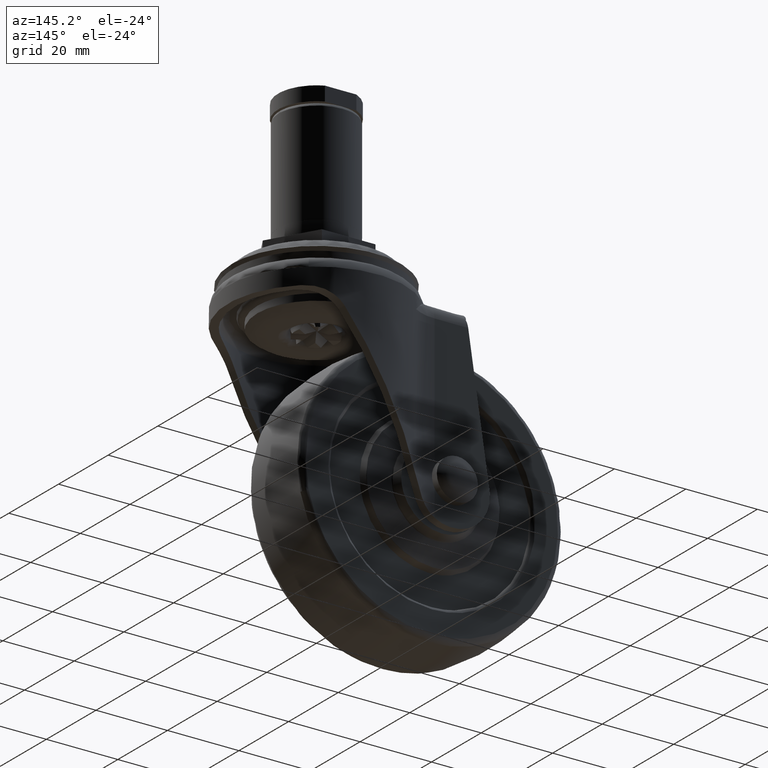
[diagram: clean part render]
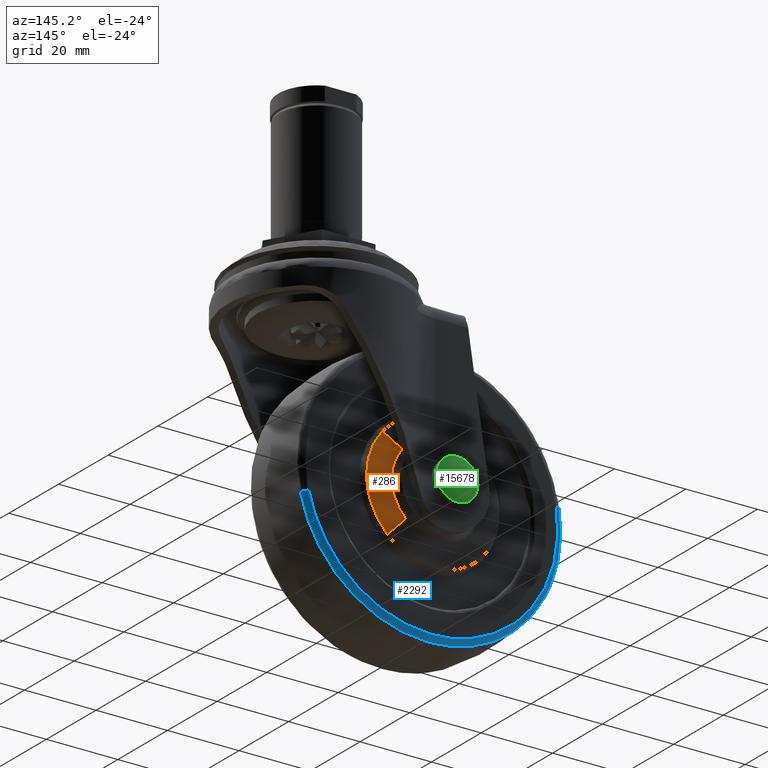
[diagram: same view with three faces highlighted in distinct colors, each labeled with its STEP entity id]
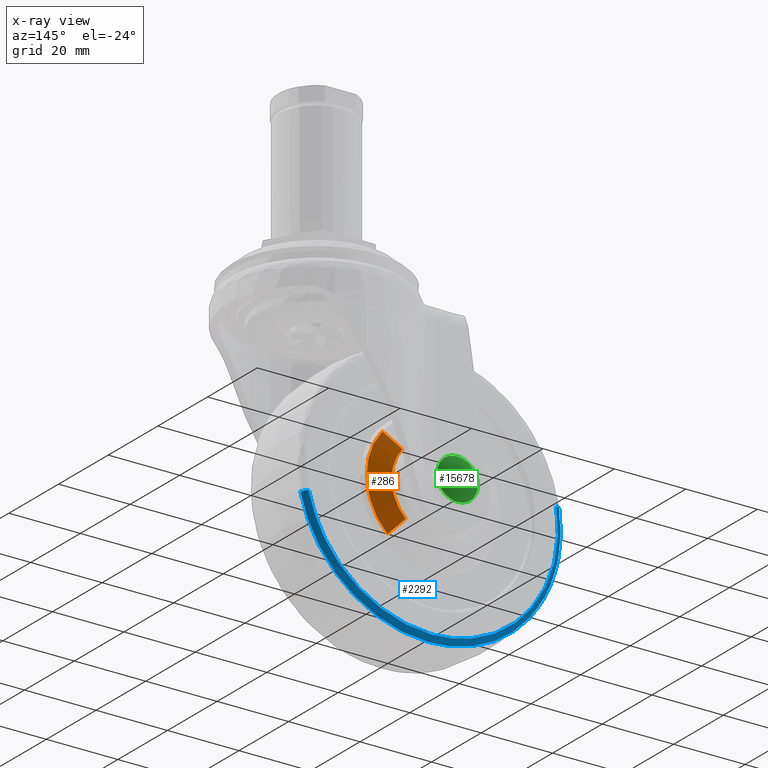
[diagram: x-ray of the same camera — body ghosted, the three highlighted faces saturated]
A machine part, auxiliary view with three faces highlighted in distinct colors.
The next image is the same camera in x-ray (body ghosted, the three faces saturated) — at least one of them is partly hidden behind the body in this view.
Their STEP definitions:

[orange] entity #286 — the highlighted face is a freeform B-spline surface patch.
#70=CARTESIAN_POINT('',(-15.360513245780989,12.469561828281330,-49.348173803471440));
#71=VERTEX_POINT('',#70);
#126=CARTESIAN_POINT('',(-16.309885233722969,12.469561063073030,-66.657796227111035));
#127=VERTEX_POINT('',#126);
#139=CARTESIAN_POINT('',(-12.201779515133881,11.010146419921080,-70.986836385914472));
#140=VERTEX_POINT('',#139);
#141=CARTESIAN_POINT('',(-16.309885233722969,12.469561063073030,-66.657796227111035));
#142=CARTESIAN_POINT('',(-12.201779515133881,11.010146419921080,-70.986836385914472));
#143=QUASI_UNIFORM_CURVE('',1,(#141,#142),.UNSPECIFIED.,.F.,.U.);
#144=EDGE_CURVE('',#127,#140,#143,.T.);
#203=CARTESIAN_POINT('',(-10.803603628256790,11.010146209847541,-45.494377231858323));
#204=VERTEX_POINT('',#203);
#216=CARTESIAN_POINT('',(-15.360513245780989,12.469561828281330,-49.348173803471440));
#217=CARTESIAN_POINT('',(-10.803603628256790,11.010146209847541,-45.494377231858323));
#218=QUASI_UNIFORM_CURVE('',1,(#216,#217),.UNSPECIFIED.,.F.,.U.);
#219=EDGE_CURVE('',#71,#204,#218,.T.);
#224=CARTESIAN_POINT('',(-16.412587517168230,12.506046367146620,-66.549570601997857));
#225=CARTESIAN_POINT('',(-7.866902248768105,12.506046367146622,-58.440018083988804));
#226=CARTESIAN_POINT('',(-15.474433538971999,12.506046367146617,-49.444516629513544));
#227=CARTESIAN_POINT('',(-12.096508686655810,10.972748812809961,-71.097768692737745));
#228=CARTESIAN_POINT('',(0.744283094084672,10.972748812809956,-58.912312284251371));
#229=CARTESIAN_POINT('',(-10.686833568285049,10.972748812809954,-45.395624328589037));
#237=(BOUNDED_SURFACE()B_SPLINE_SURFACE(2,1,((#224,#227),(#225,#228),(#226,#229)),.UNSPECIFIED.,.F.,.F.,.U.)B_SPLINE_SURFACE_WITH_KNOTS((3,3),(2,2),(0.0,29.807898895841220),(0.0,6.454893007164583),.UNSPECIFIED.)GEOMETRIC_REPRESENTATION_ITEM()RATIONAL_B_SPLINE_SURFACE(((1.0,1.0),(0.718822509939086,0.718822509939086),(0.977505800795127,0.977505800795127)))REPRESENTATION_ITEM('')SURFACE());
#238=CARTESIAN_POINT('',(-12.375525000000071,12.469561000000001,-57.500324905101913));
#239=VERTEX_POINT('',#238);
#240=CARTESIAN_POINT('',(-12.375525000000071,12.469561000000001,-57.500324905101913));
#241=CARTESIAN_POINT('',(-12.375333794860049,12.469561098486270,-56.530998280799182));
#242=CARTESIAN_POINT('',(-12.573194188350399,12.469561272000471,-54.823229175540277));
#243=CARTESIAN_POINT('',(-13.254387304722121,12.469561482165460,-52.754731765500694));
#244=CARTESIAN_POINT('',(-14.138083279805320,12.469561663074980,-50.974176499056931));
#245=CARTESIAN_POINT('',(-14.853741755116131,12.469561767410800,-49.947276247969029));
#246=CARTESIAN_POINT('',(-15.360513245780989,12.469561828281330,-49.348173803471440));
#247=B_SPLINE_CURVE_WITH_KNOTS('',3,(#240,#241,#242,#243,#244,#245,#246),.UNSPECIFIED.,.F.,.U.,(4,1,1,1,4),(0.000000020981012,2.907962576312837,5.123545373844451,6.508292559035523,8.862356812620623),.UNSPECIFIED.);
#248=EDGE_CURVE('',#239,#71,#247,.T.);
#249=ORIENTED_EDGE('',*,*,#248,.T.);
#250=ORIENTED_EDGE('',*,*,#219,.T.);
#251=CARTESIAN_POINT('',(-6.407516489852390,11.010146314222281,-57.500324165151923));
#252=VERTEX_POINT('',#251);
#253=CARTESIAN_POINT('',(-6.407516489852390,11.010146314222281,-57.500324165151923));
#254=CARTESIAN_POINT('',(-6.407361795500528,11.010146303584630,-56.276705718305053));
#255=CARTESIAN_POINT('',(-6.643239615464803,11.010146282901010,-53.897520348325003));
#256=CARTESIAN_POINT('',(-7.543278342137390,11.010146256743150,-50.888654899785941));
#257=CARTESIAN_POINT('',(-8.889686924182533,11.010146232152289,-48.060030081569337));
#258=CARTESIAN_POINT('',(-10.013331130330419,11.010146217969030,-46.428573671421603));
#259=CARTESIAN_POINT('',(-10.803603628256790,11.010146209847541,-45.494377231858323));
#260=B_SPLINE_CURVE_WITH_KNOTS('',3,(#253,#254,#255,#256,#257,#258,#259),.UNSPECIFIED.,.F.,.U.,(4,1,1,1,4),(4.363807E-009,3.670843806502665,7.137750827014534,9.381045055685899,13.051888857829040),.UNSPECIFIED.);
#261=EDGE_CURVE('',#252,#204,#260,.T.);
#262=ORIENTED_EDGE('',*,*,#261,.F.);
#263=CARTESIAN_POINT('',(-12.201779515133881,11.010146419921080,-70.986836385914472));
#264=CARTESIAN_POINT('',(-11.232480927642950,11.010146412714610,-70.067333827382740));
#265=CARTESIAN_POINT('',(-9.570329737330123,11.010146397362361,-68.108485038943670));
#266=CARTESIAN_POINT('',(-7.892524143442133,11.010146373162430,-65.020723342128051));
#267=CARTESIAN_POINT('',(-6.715488912686851,11.010146345633650,-61.508219173009223));
#268=CARTESIAN_POINT('',(-6.407078858631341,11.010146326233510,-59.032881893401679));
#269=CARTESIAN_POINT('',(-6.407516489852390,11.010146314222281,-57.500324165151923));
#270=B_SPLINE_CURVE_WITH_KNOTS('',3,(#263,#264,#265,#266,#267,#268,#269),.UNSPECIFIED.,.F.,.U.,(4,1,1,1,4),(0.000000023289124,4.008091632298649,7.662498049215182,10.491758269599019,15.089279230478370),.UNSPECIFIED.);
#271=EDGE_CURVE('',#140,#252,#270,.T.);
#272=ORIENTED_EDGE('',*,*,#271,.F.);
#273=ORIENTED_EDGE('',*,*,#144,.F.);
#274=CARTESIAN_POINT('',(-16.309885233722969,12.469561063073030,-66.657796227111035));
#275=CARTESIAN_POINT('',(-15.651729596427030,12.469561058772751,-66.033442322389078));
#276=CARTESIAN_POINT('',(-14.575208037096891,12.469561050034400,-64.764737911121699));
#277=CARTESIAN_POINT('',(-13.352004416262810,12.469561034875420,-62.563830046982041));
#278=CARTESIAN_POINT('',(-12.566135406950931,12.469561018376931,-60.168439572395542));
#279=CARTESIAN_POINT('',(-12.375377246665950,12.469561006248290,-58.407513244962367));
#280=CARTESIAN_POINT('',(-12.375525000000071,12.469561000000001,-57.500324905101913));
#281=B_SPLINE_CURVE_WITH_KNOTS('',3,(#274,#275,#276,#277,#278,#279,#280),.UNSPECIFIED.,.F.,.U.,(4,1,1,1,4),(0.000000015564956,2.721545468878960,4.962823566775104,7.524271532146420,10.245816985466501),.UNSPECIFIED.);
#282=EDGE_CURVE('',#127,#239,#281,.T.);
#283=ORIENTED_EDGE('',*,*,#282,.T.);
#284=EDGE_LOOP('',(#249,#250,#262,#272,#273,#283));
#285=FACE_OUTER_BOUND('',#284,.T.);
#286=ADVANCED_FACE('',(#285),#237,.T.);

[blue] entity #2292 — the highlighted face is a freeform B-spline surface patch.
#2076=CARTESIAN_POINT('',(9.448117864550852,10.500000000000000,-65.224805261356721));
#2077=VERTEX_POINT('',#2076);
#2099=CARTESIAN_POINT('',(-59.833513229339282,10.500000000000000,-51.758657256339752));
#2100=VERTEX_POINT('',#2099);
#2118=CARTESIAN_POINT('',(-61.295925853298350,9.230744510506929,-51.517605232987627));
#2119=VERTEX_POINT('',#2118);
#2120=CARTESIAN_POINT('',(-59.833513229339282,10.500000000000000,-51.758657256339752));
#2121=CARTESIAN_POINT('',(-60.008217688595209,10.500135909219120,-51.729860415632807));
#2122=CARTESIAN_POINT('',(-60.346607461263332,10.438566332578571,-51.674083039242277));
#2123=CARTESIAN_POINT('',(-60.740421790180847,10.210016756111530,-51.609169936574737));
#2124=CARTESIAN_POINT('',(-61.016840969730033,9.923355690446682,-51.563607281113832));
#2125=CARTESIAN_POINT('',(-61.203978617540017,9.608171972169075,-51.532761056235557));
#2126=CARTESIAN_POINT('',(-61.275814923186587,9.361957360957392,-51.520920152679409));
#2127=CARTESIAN_POINT('',(-61.295925853298350,9.230744510506929,-51.517605232987627));
#2128=B_SPLINE_CURVE_WITH_KNOTS('',3,(#2120,#2121,#2122,#2123,#2124,#2125,#2126,#2127),.UNSPECIFIED.,.F.,.U.,(4,1,1,1,1,4),(0.000000222650492,0.531145818152272,1.029128636263193,1.361035940651829,1.726221465757068,2.124573406588514),.UNSPECIFIED.);
#2129=EDGE_CURVE('',#2100,#2119,#2128,.T.);
#2148=CARTESIAN_POINT('',(10.894347438131330,9.230757517157327,-65.549100782697806));
#2149=VERTEX_POINT('',#2148);
#2169=CARTESIAN_POINT('',(9.448117864550852,10.500000000000000,-65.224805261356721));
#2170=CARTESIAN_POINT('',(9.631681647318178,10.500149542390760,-65.265966715756704));
#2171=CARTESIAN_POINT('',(9.998704315481739,10.428361956632830,-65.348266102873154));
#2172=CARTESIAN_POINT('',(10.435092005774839,10.145269977581110,-65.446119566890388));
#2173=CARTESIAN_POINT('',(10.755280700316010,9.734800987311674,-65.517917130368218));
#2174=CARTESIAN_POINT('',(10.866259525119570,9.416668345833861,-65.542802485009233));
#2175=CARTESIAN_POINT('',(10.894347438131330,9.230757517157327,-65.549100782697806));
#2176=B_SPLINE_CURVE_WITH_KNOTS('',3,(#2169,#2170,#2171,#2172,#2173,#2174,#2175),.UNSPECIFIED.,.F.,.U.,(4,1,1,1,4),(0.000000222641479,0.564338774076705,1.128646781123056,1.560222028548235,2.124559430739951),.UNSPECIFIED.);
#2177=EDGE_CURVE('',#2077,#2149,#2176,.T.);
#2182=CARTESIAN_POINT('',(-59.738642996828958,10.496915196817787,-51.774294882513047));
#2183=CARTESIAN_POINT('',(-65.464674114315997,10.496915196817788,-86.512937879341990));
#2184=CARTESIAN_POINT('',(-30.726031117487057,10.496915196817787,-92.238968996829044));
#2185=CARTESIAN_POINT('',(2.079525894053373,10.496915196817788,-97.646366179606829));
#2186=CARTESIAN_POINT('',(9.354297263545059,10.496915196817787,-65.203767383404212));
#2187=CARTESIAN_POINT('',(-61.177621264303497,10.590591351082471,-51.537105584770494));
#2188=CARTESIAN_POINT('',(-67.140841679533111,10.590591351082473,-87.714726849073998));
#2189=CARTESIAN_POINT('',(-30.963220415229607,10.590591351082471,-93.677947264303583));
#2190=CARTESIAN_POINT('',(3.201240673142885,10.590591351082473,-99.309334976312215));
#2191=CARTESIAN_POINT('',(10.777354783699616,10.590591351082471,-65.522866915774955));
#2192=CARTESIAN_POINT('',(-61.307523969174440,9.135132918560542,-51.515693495345921));
#2193=CARTESIAN_POINT('',(-67.292156473828626,9.135132918560542,-87.823217464520340));
#2194=CARTESIAN_POINT('',(-30.984632504654179,9.135132918560542,-93.807849969174526));
#2195=CARTESIAN_POINT('',(3.302502649915583,9.135132918560542,-99.459458261486688));
#2196=CARTESIAN_POINT('',(10.905820254814362,9.135132918560544,-65.551673391393805));
#2204=(BOUNDED_SURFACE()B_SPLINE_SURFACE(2,2,((#2182,#2187,#2192),(#2183,#2188,#2193),(#2184,#2189,#2194),(#2185,#2190,#2195),(#2186,#2191,#2196)),.UNSPECIFIED.,.F.,.F.,.U.)B_SPLINE_SURFACE_WITH_KNOTS((3,2,3),(3,3),(0.0,60.968006821225977,119.497293369602900),(0.0,2.439595126112496),.UNSPECIFIED.)GEOMETRIC_REPRESENTATION_ITEM()RATIONAL_B_SPLINE_SURFACE(((0.918060100511515,0.657096391141304,0.916732661836285),(0.649166522608496,0.464637314069224,0.648227881719631),(0.918060100511515,0.657096391141304,0.916732661836285),(0.659922265724616,0.472335677152107,0.658968072924297),(0.897409073728563,0.642315534022168,0.896111494723326)))REPRESENTATION_ITEM('')SURFACE());
#2205=CARTESIAN_POINT('',(-25.0,10.500000000000000,-92.803872603993199));
#2206=VERTEX_POINT('',#2205);
#2207=CARTESIAN_POINT('',(-25.0,10.500000000000000,-92.803872603993199));
#2208=CARTESIAN_POINT('',(-23.634542600588080,10.500000000000050,-92.803902566799621));
#2209=CARTESIAN_POINT('',(-20.841551979889768,10.499999999999940,-92.641643244077059));
#2210=CARTESIAN_POINT('',(-16.434216722818160,10.500000000000000,-91.854768696764694));
#2211=CARTESIAN_POINT('',(-11.750601591927801,10.500000000000080,-90.362076375235461));
#2212=CARTESIAN_POINT('',(-7.615373623320838,10.500000000000000,-88.332627948921612));
#2213=CARTESIAN_POINT('',(-3.977562979497754,10.499999999999821,-85.948301299618606));
#2214=CARTESIAN_POINT('',(-0.855945180144342,10.500000000000171,-83.380947385315608));
#2215=CARTESIAN_POINT('',(1.967474391230728,10.499999999999950,-80.401672975649205));
#2216=CARTESIAN_POINT('',(4.845077607472602,10.499999999999851,-76.578420665445748));
#2217=CARTESIAN_POINT('',(7.560461023839162,10.500000000000380,-71.671100398578318));
#2218=CARTESIAN_POINT('',(8.945902269185249,10.499999999999741,-67.465695131917684));
#2219=CARTESIAN_POINT('',(9.448117864550852,10.500000000000000,-65.224805261356721));
#2220=B_SPLINE_CURVE_WITH_KNOTS('',3,(#2207,#2208,#2209,#2210,#2211,#2212,#2213,#2214,#2215,#2216,#2217,#2218,#2219),.UNSPECIFIED.,.F.,.U.,(4,1,1,1,1,1,1,1,1,1,4),(0.000000049443351,4.096375397327307,8.378997641438211,13.406416457295469,18.806225564613989,22.157831201452570,26.440399461184281,30.909231168444869,34.447035512529403,40.777868482994990,47.667256501133963),.UNSPECIFIED.);
#2221=EDGE_CURVE('',#2206,#2077,#2220,.T.);
#2222=ORIENTED_EDGE('',*,*,#2221,.T.);
#2223=ORIENTED_EDGE('',*,*,#2177,.T.);
#2224=CARTESIAN_POINT('',(-25.0,9.230769230769241,-94.286014824608401));
#2225=VERTEX_POINT('',#2224);
#2226=CARTESIAN_POINT('',(-25.0,9.230769230769241,-94.286014824608401));
#2227=CARTESIAN_POINT('',(-22.283718620218512,9.230769238891483,-94.286521016585553));
#2228=CARTESIAN_POINT('',(-17.627533338174509,9.230769039136142,-93.767812294298110));
#2229=CARTESIAN_POINT('',(-11.245102315341811,9.230768243947543,-91.789028585724935));
#2230=CARTESIAN_POINT('',(-5.899806253236454,9.230767166301915,-89.130774744798941));
#2231=CARTESIAN_POINT('',(-1.374350978914402,9.230765836678135,-85.865623533622511));
#2232=CARTESIAN_POINT('',(2.486818183613340,9.230764308022854,-82.121216772231648));
#2233=CARTESIAN_POINT('',(5.203100864277729,9.230762887309552,-78.647390955648362));
#2234=CARTESIAN_POINT('',(7.359855120820316,9.230761438969589,-75.110352669078267));
#2235=CARTESIAN_POINT('',(9.342654356531476,9.230759768157368,-71.033586856754610));
#2236=CARTESIAN_POINT('',(10.413425354807110,9.230758398160761,-67.694740905863071));
#2237=CARTESIAN_POINT('',(10.894347438131330,9.230757517157327,-65.549100782697806));
#2238=B_SPLINE_CURVE_WITH_KNOTS('',3,(#2226,#2227,#2228,#2229,#2230,#2231,#2232,#2233,#2234,#2235,#2236,#2237),.UNSPECIFIED.,.F.,.U.,(4,1,1,1,1,1,1,1,1,4),(0.000000047919904,8.148728203206545,13.969258487616830,19.983811265025551,25.998320696372090,30.654731978818582,36.087241936118090,39.191527838840457,43.071870388966779,49.668462225115412),.UNSPECIFIED.);
#2239=EDGE_CURVE('',#2225,#2149,#2238,.T.);
#2240=ORIENTED_EDGE('',*,*,#2239,.F.);
#2241=CARTESIAN_POINT('',(-61.539658247174529,9.230744661824314,-53.252908088126937));
#2242=VERTEX_POINT('',#2241);
#2243=CARTESIAN_POINT('',(-61.539658247174529,9.230744661824314,-53.252908088126937));
#2244=CARTESIAN_POINT('',(-61.744946089440980,9.230745190284553,-55.018182517592400));
#2245=CARTESIAN_POINT('',(-61.884889819789549,9.230746229554304,-58.254880792590079));
#2246=CARTESIAN_POINT('',(-61.470031066895167,9.230747914178791,-62.930038187830966));
#2247=CARTESIAN_POINT('',(-60.455163371524108,9.230749829238745,-67.760928657419782));
#2248=CARTESIAN_POINT('',(-58.931864727367220,9.230751681365906,-71.950612904566242));
#2249=CARTESIAN_POINT('',(-56.952238955035611,9.230753569437971,-75.841579625838122));
#2250=CARTESIAN_POINT('',(-54.608992513770687,9.230755497683184,-79.529041696271321));
#2251=CARTESIAN_POINT('',(-51.196859726420989,9.230757852970362,-83.543441044741769));
#2252=CARTESIAN_POINT('',(-47.504907892624203,9.230760006720759,-86.705165183293957));
#2253=CARTESIAN_POINT('',(-43.884420686933623,9.230761897995537,-89.144545799437680));
#2254=CARTESIAN_POINT('',(-40.600731771041580,9.230763460524676,-90.899421307800367));
#2255=CARTESIAN_POINT('',(-36.242294536153267,9.230765335984753,-92.634307784918306));
#2256=CARTESIAN_POINT('',(-31.139302728015661,9.230767289249625,-93.939159994999429));
#2257=CARTESIAN_POINT('',(-27.100312168093431,9.230768606241922,-94.286187401243097));
#2258=CARTESIAN_POINT('',(-25.0,9.230769230769241,-94.286014824608401));
#2259=B_SPLINE_CURVE_WITH_KNOTS('',3,(#2243,#2244,#2245,#2246,#2247,#2248,#2249,#2250,#2251,#2252,#2253,#2254,#2255,#2256,#2257,#2258),.UNSPECIFIED.,.F.,.U.,(4,1,1,1,1,1,1,1,1,1,1,1,1,4),(0.000000053090453,5.331514319707694,9.693709210285931,14.055900528981960,20.114487270160289,23.022606630096579,27.142471634102169,33.200972064728802,38.774901304281762,41.683024689837332,46.287544723096190,49.922695526750402,55.738935545576673,62.039851829810097),.UNSPECIFIED.);
#2260=EDGE_CURVE('',#2242,#2225,#2259,.T.);
#2261=ORIENTED_EDGE('',*,*,#2260,.F.);
#2262=CARTESIAN_POINT('',(-61.295925853298350,9.230744510506929,-51.517605232987627));
#2263=CARTESIAN_POINT('',(-61.390933427435058,9.230744559121549,-52.093993957669170));
#2264=CARTESIAN_POINT('',(-61.472209219325279,9.230744609579858,-52.672649159643399));
#2265=CARTESIAN_POINT('',(-61.539658247174529,9.230744661824314,-53.252908088126937));
#2266=B_SPLINE_CURVE_WITH_KNOTS('',3,(#2262,#2263,#2264,#2265),.UNSPECIFIED.,.F.,.U.,(4,4),(7.190248E-011,1.752504322598226),.UNSPECIFIED.);
#2267=EDGE_CURVE('',#2119,#2242,#2266,.T.);
#2268=ORIENTED_EDGE('',*,*,#2267,.F.);
#2269=ORIENTED_EDGE('',*,*,#2129,.F.);
#2270=CARTESIAN_POINT('',(-59.833513229339282,10.500000000000000,-51.758657256339752));
#2271=CARTESIAN_POINT('',(-60.157827335273822,10.500000000000000,-53.725010796835441));
#2272=CARTESIAN_POINT('',(-60.390187804433459,10.500000000000000,-56.675935307593647));
#2273=CARTESIAN_POINT('',(-60.189314020852407,10.500000000000000,-60.979473602469049));
#2274=CARTESIAN_POINT('',(-59.555610748692310,10.500000000000030,-65.325201265549040));
#2275=CARTESIAN_POINT('',(-58.226093176246373,10.499999999999940,-69.772181904560341));
#2276=CARTESIAN_POINT('',(-56.331924626600902,10.500000000000030,-73.908855139348915));
#2277=CARTESIAN_POINT('',(-54.258392618470673,10.499999999999980,-77.412769228990385));
#2278=CARTESIAN_POINT('',(-51.918223771557180,10.499999999999989,-80.451168199389812));
#2279=CARTESIAN_POINT('',(-49.101303253265890,10.500000000000000,-83.387277666685776));
#2280=CARTESIAN_POINT('',(-45.866257392999977,10.500000000000140,-86.118380102866908));
#2281=CARTESIAN_POINT('',(-42.011224442078714,10.499999999999520,-88.547359086643240));
#2282=CARTESIAN_POINT('',(-37.664353007278400,10.500000000000281,-90.559560384732251));
#2283=CARTESIAN_POINT('',(-33.622990334329373,10.499999999999810,-91.831151600150363));
#2284=CARTESIAN_POINT('',(-29.224927186315909,10.500000000000270,-92.629177397193700));
#2285=CARTESIAN_POINT('',(-26.514594213503969,10.499999999999620,-92.803918074773179));
#2286=CARTESIAN_POINT('',(-25.0,10.500000000000000,-92.803872603993199));
#2287=B_SPLINE_CURVE_WITH_KNOTS('',3,(#2270,#2271,#2272,#2273,#2274,#2275,#2276,#2277,#2278,#2279,#2280,#2281,#2282,#2283,#2284,#2285,#2286),.UNSPECIFIED.,.F.,.U.,(4,1,1,1,1,1,1,1,1,1,1,1,1,1,4),(0.000000054537225,5.978718219457718,8.848502956173640,12.914026817982419,19.131903366409940,22.719161303073449,26.545548561516579,31.328434871370330,34.198261283683607,38.742100257815238,44.003366456578959,47.829761433116062,53.091027631878880,56.678297352958040,61.222085245198613),.UNSPECIFIED.);
#2288=EDGE_CURVE('',#2100,#2206,#2287,.T.);
#2289=ORIENTED_EDGE('',*,*,#2288,.T.);
#2290=EDGE_LOOP('',(#2222,#2223,#2240,#2261,#2268,#2269,#2289));
#2291=FACE_OUTER_BOUND('',#2290,.T.);
#2292=ADVANCED_FACE('',(#2291),#2204,.T.);

[green] entity #15678 — the highlighted face is a freeform B-spline surface patch.
#15404=CARTESIAN_POINT('',(-29.390445171397069,20.804429000015279,-53.787263924521852));
#15405=VERTEX_POINT('',#15404);
#15406=CARTESIAN_POINT('',(-25.0,20.804428999999999,-51.750281000000001));
#15407=VERTEX_POINT('',#15406);
#15408=CARTESIAN_POINT('',(-29.390445171397069,20.804429000015279,-53.787263924521852));
#15409=CARTESIAN_POINT('',(-29.004234265847419,20.804429000013929,-53.330089514803831));
#15410=CARTESIAN_POINT('',(-28.186893953155149,20.804429000011130,-52.624470443450122));
#15411=CARTESIAN_POINT('',(-26.665058857580991,20.804429000005719,-51.918360794297243));
#15412=CARTESIAN_POINT('',(-25.598463151916640,20.804429000002148,-51.749971887286392));
#15413=CARTESIAN_POINT('',(-25.0,20.804428999999999,-51.750281000000001));
#15414=B_SPLINE_CURVE_WITH_KNOTS('',3,(#15408,#15409,#15410,#15411,#15412,#15413),.UNSPECIFIED.,.F.,.U.,(4,1,1,4),(0.000000051345254,1.795319283813746,3.200328502193839,4.995647734626526),.UNSPECIFIED.);
#15415=EDGE_CURVE('',#15405,#15407,#15414,.T.);
#15479=CARTESIAN_POINT('',(-28.958038531068208,20.804428999999999,-61.671183339100587));
#15480=VERTEX_POINT('',#15479);
#15486=CARTESIAN_POINT('',(-25.0,20.804428999999999,-63.250281000000008));
#15487=VERTEX_POINT('',#15486);
#15488=CARTESIAN_POINT('',(-25.0,20.804428999999999,-63.250281000000008));
#15489=CARTESIAN_POINT('',(-25.613953008273569,20.804429000000010,-63.250617256658380));
#15490=CARTESIAN_POINT('',(-26.545916652477430,20.804428999999988,-63.099516025029743));
#15491=CARTESIAN_POINT('',(-27.888946023845719,20.804429000000059,-62.526311460189447));
#15492=CARTESIAN_POINT('',(-28.578820410225710,20.804428999999960,-62.031322109254347));
#15493=CARTESIAN_POINT('',(-28.958038531068208,20.804428999999999,-61.671183339100587));
#15494=B_SPLINE_CURVE_WITH_KNOTS('',3,(#15488,#15489,#15490,#15491,#15492,#15493),.UNSPECIFIED.,.F.,.U.,(4,1,1,4),(0.000000038624127,1.841709733246759,2.796657109342736,4.365530233688520),.UNSPECIFIED.);
#15495=EDGE_CURVE('',#15487,#15480,#15494,.T.);
#15497=CARTESIAN_POINT('',(-19.250000000000231,20.804428999999999,-57.500282624579278));
#15498=VERTEX_POINT('',#15497);
#15499=CARTESIAN_POINT('',(-19.250000000000231,20.804428999999999,-57.500282624579278));
#15500=CARTESIAN_POINT('',(-19.249871656414470,20.804428999999999,-57.970711925822897));
#15501=CARTESIAN_POINT('',(-19.340012009535819,20.804428999999960,-58.699795183655162));
#15502=CARTESIAN_POINT('',(-19.688369784981472,20.804429000000031,-59.776443219744742));
#15503=CARTESIAN_POINT('',(-20.206230591485760,20.804428999999971,-60.759952120583023));
#15504=CARTESIAN_POINT('',(-21.004859907559531,20.804429000000081,-61.697293102225061));
#15505=CARTESIAN_POINT('',(-21.964155408521918,20.804428999999971,-62.427143667850054));
#15506=CARTESIAN_POINT('',(-22.919964058553560,20.804429000000020,-62.893613224372587));
#15507=CARTESIAN_POINT('',(-23.941571884738000,20.804429000000209,-63.183071607162319));
#15508=CARTESIAN_POINT('',(-24.623664028366349,20.804428999999431,-63.250327890516957));
#15509=CARTESIAN_POINT('',(-25.0,20.804428999999999,-63.250281000000008));
#15510=B_SPLINE_CURVE_WITH_KNOTS('',3,(#15499,#15500,#15501,#15502,#15503,#15504,#15505,#15506,#15507,#15508,#15509),.UNSPECIFIED.,.F.,.U.,(4,1,1,1,1,1,1,1,4),(0.000000155957595,1.411253498495841,2.187470076541890,3.387067128537193,4.727743121535977,5.856771192509704,6.985794074827475,7.903127543900979,9.032134635896551),.UNSPECIFIED.);
#15511=EDGE_CURVE('',#15498,#15487,#15510,.T.);
#15513=CARTESIAN_POINT('',(-25.0,20.804428999999999,-51.750281000000001));
#15514=CARTESIAN_POINT('',(-24.388399429174559,20.804429000000049,-51.749939280975113));
#15515=CARTESIAN_POINT('',(-23.494835729404731,20.804428999999981,-51.894257534945439));
#15516=CARTESIAN_POINT('',(-22.318192128108539,20.804429000000020,-52.381749510149767));
#15517=CARTESIAN_POINT('',(-21.459570224609600,20.804428999999988,-52.925420379614231));
#15518=CARTESIAN_POINT('',(-20.736914370742049,20.804428999999999,-53.605100285326237));
#15519=CARTESIAN_POINT('',(-20.118133204566870,20.804428999999999,-54.408048770948447));
#15520=CARTESIAN_POINT('',(-19.677343268957291,20.804429000000020,-55.245038450895571));
#15521=CARTESIAN_POINT('',(-19.335456466750639,20.804428999999910,-56.324273020730452));
#15522=CARTESIAN_POINT('',(-19.249903027649900,20.804429000000230,-57.053374609680262));
#15523=CARTESIAN_POINT('',(-19.250000000000231,20.804428999999999,-57.500282624579278));
#15524=B_SPLINE_CURVE_WITH_KNOTS('',3,(#15513,#15514,#15515,#15516,#15517,#15518,#15519,#15520,#15521,#15522,#15523),.UNSPECIFIED.,.F.,.U.,(4,1,1,1,1,1,1,1,4),(0.000000155383701,1.834650228796867,2.681426291951579,3.810468126335030,4.868858736007938,5.645075638600789,6.844667427508215,7.691432404894587,9.032136467187584),.UNSPECIFIED.);
#15525=EDGE_CURVE('',#15407,#15498,#15524,.T.);
#15544=CARTESIAN_POINT('',(-30.749999999999769,20.804428999999999,-57.500279375420682));
#15545=VERTEX_POINT('',#15544);
#15546=CARTESIAN_POINT('',(-30.749999999999769,20.804428999999999,-57.500279375420682));
#15547=CARTESIAN_POINT('',(-30.750202303545120,20.804429000002330,-56.953656342136611));
#15548=CARTESIAN_POINT('',(-30.611063737106029,20.804429000006010,-55.986678352275092));
#15549=CARTESIAN_POINT('',(-30.090241968511009,20.804429000011631,-54.737292761991938));
#15550=CARTESIAN_POINT('',(-29.634845173754361,20.804429000013830,-54.076178581517247));
#15551=CARTESIAN_POINT('',(-29.390445171397069,20.804429000015279,-53.787263924521852));
#15552=B_SPLINE_CURVE_WITH_KNOTS('',3,(#15546,#15547,#15548,#15549,#15550,#15551),.UNSPECIFIED.,.F.,.U.,(4,1,1,4),(0.000000029522239,1.639837456328579,2.901224470646636,4.036488423800655),.UNSPECIFIED.);
#15553=EDGE_CURVE('',#15545,#15405,#15552,.T.);
#15555=CARTESIAN_POINT('',(-28.958038531068208,20.804428999999999,-61.671183339100587));
#15556=CARTESIAN_POINT('',(-29.328409874626871,20.804429000000031,-61.319955067515373));
#15557=CARTESIAN_POINT('',(-29.866776446909050,20.804429000000031,-60.651596271492693));
#15558=CARTESIAN_POINT('',(-30.350772746847039,20.804428999999960,-59.665972973133513));
#15559=CARTESIAN_POINT('',(-30.664594930117779,20.804428999999821,-58.666876643166219));
#15560=CARTESIAN_POINT('',(-30.750124879602140,20.804429000000201,-57.962091025721811));
#15561=CARTESIAN_POINT('',(-30.749999999999769,20.804428999999999,-57.500279375420682));
#15562=B_SPLINE_CURVE_WITH_KNOTS('',3,(#15555,#15556,#15557,#15558,#15559,#15560,#15561),.UNSPECIFIED.,.F.,.U.,(4,1,1,1,4),(0.000000041833060,1.531236884442122,2.552048693852816,3.281202738973795,4.666606812724740),.UNSPECIFIED.);
#15563=EDGE_CURVE('',#15480,#15545,#15562,.T.);
#15646=CARTESIAN_POINT('',(-30.667619907635547,18.801572555065857,-51.832662038163981));
#15647=CARTESIAN_POINT('',(-28.108969691291186,20.479711461218120,-51.282342655052993));
#15648=CARTESIAN_POINT('',(-21.891030415677786,20.479711461217949,-51.282342655052993));
#15649=CARTESIAN_POINT('',(-19.332380252850520,18.801572660323597,-51.832662003646234));
#15650=CARTESIAN_POINT('',(-31.217939181076144,20.479710846746254,-54.391311928279819));
#15651=CARTESIAN_POINT('',(-28.443311197755850,22.518787000000170,-54.056970376856093));
#15652=CARTESIAN_POINT('',(-21.556688920716610,22.518786999999989,-54.056970376856093));
#15653=CARTESIAN_POINT('',(-18.782060991315820,20.479710973437232,-54.391311907506584));
#15654=CARTESIAN_POINT('',(-31.217939181076144,20.479710846746098,-60.609251355353791));
#15655=CARTESIAN_POINT('',(-28.443311197755850,22.518787000000010,-60.943593044820780));
#15656=CARTESIAN_POINT('',(-21.556688920716610,22.518786999999818,-60.943593044820780));
#15657=CARTESIAN_POINT('',(-18.782060991315820,20.479710973437079,-60.609251376127013));
#15658=CARTESIAN_POINT('',(-30.667619493422702,18.801571291968912,-63.167901887673636));
#15659=CARTESIAN_POINT('',(-28.108969442012530,20.479709940921932,-63.718221413656465));
#15660=CARTESIAN_POINT('',(-21.891030664956443,20.479709940921758,-63.718221413656465));
#15661=CARTESIAN_POINT('',(-19.332380667063372,18.801571397226638,-63.167901922191376));
#15669=(BOUNDED_SURFACE()B_SPLINE_SURFACE(2,2,((#15646,#15650,#15654,#15658),(#15647,#15651,#15655,#15659),(#15648,#15652,#15656,#15660),(#15649,#15653,#15657,#15661)),.UNSPECIFIED.,.F.,.F.,.U.)B_SPLINE_SURFACE_WITH_KNOTS((3,1,3),(3,1,3),(0.0,6.535220489121705,13.070440753387940),(0.0,6.535219398538946,13.070441495343610),.UNSPECIFIED.)GEOMETRIC_REPRESENTATION_ITEM()RATIONAL_B_SPLINE_SURFACE(((1.215081905234016,1.107540970563200,1.107540970563200,1.215081994037179),(1.107540934670816,1.0,1.0,1.107541023473979),(1.107540934670816,1.0,1.0,1.107541023473979),(1.215081897833753,1.107540963162937,1.107540963162937,1.215081986636916)))REPRESENTATION_ITEM('')SURFACE());
#15670=ORIENTED_EDGE('',*,*,#15525,.T.);
#15671=ORIENTED_EDGE('',*,*,#15511,.T.);
#15672=ORIENTED_EDGE('',*,*,#15495,.T.);
#15673=ORIENTED_EDGE('',*,*,#15563,.T.);
#15674=ORIENTED_EDGE('',*,*,#15553,.T.);
#15675=ORIENTED_EDGE('',*,*,#15415,.T.);
#15676=EDGE_LOOP('',(#15670,#15671,#15672,#15673,#15674,#15675));
#15677=FACE_OUTER_BOUND('',#15676,.T.);
#15678=ADVANCED_FACE('',(#15677),#15669,.T.);